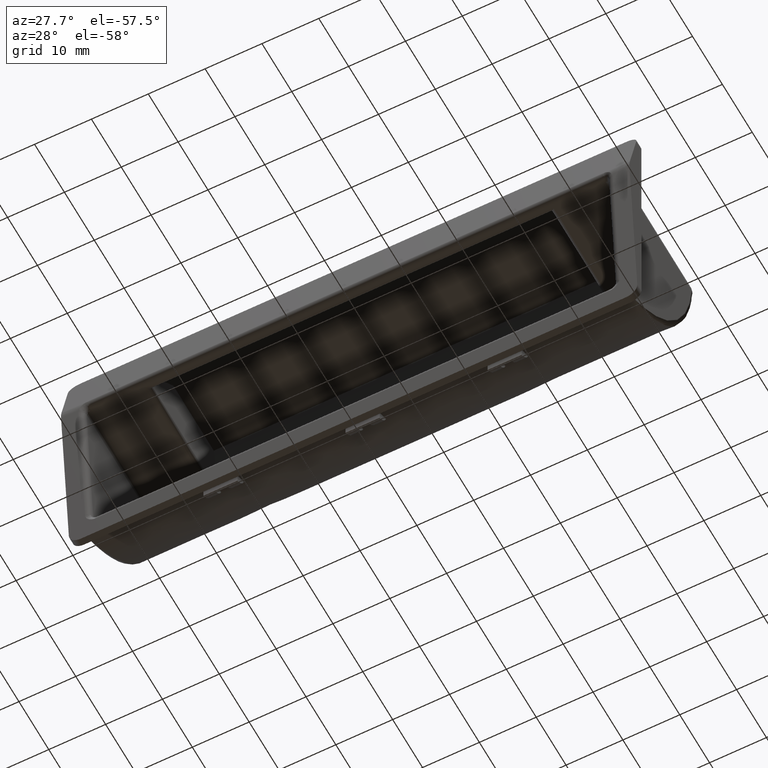
[diagram: clean part render]
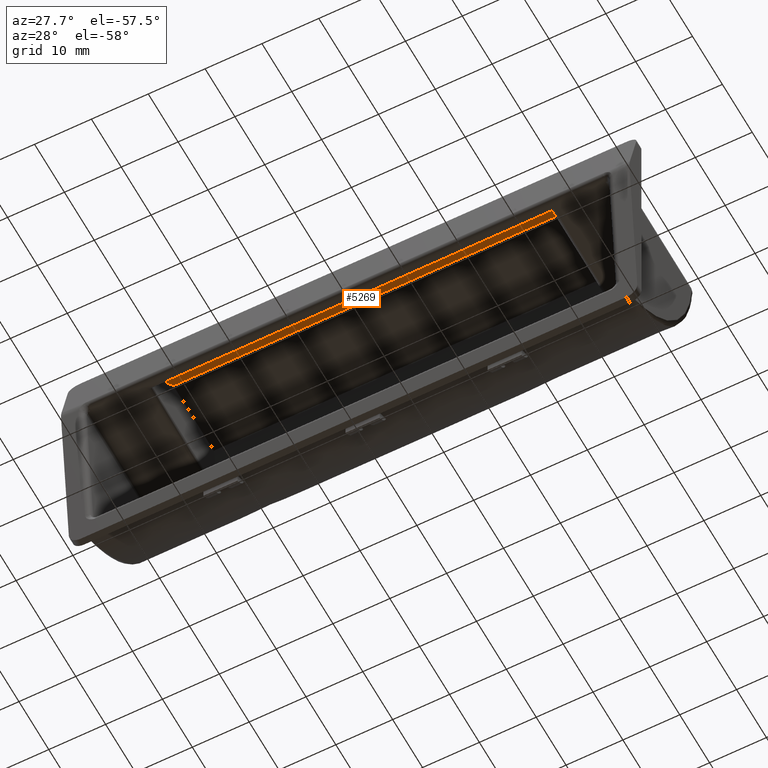
[diagram: same view with one face highlighted and labeled with its STEP entity id]
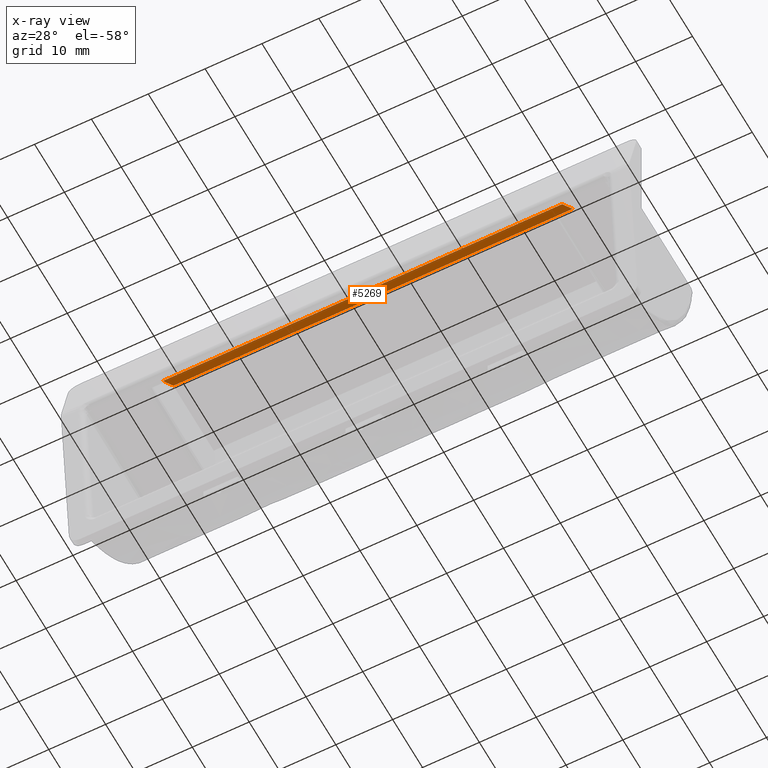
[diagram: x-ray of the same camera — body ghosted, the highlighted face saturated]
A machine part, auxiliary view. The second image highlights one B-rep face of the part: STEP entity #5269.
The next image is the same camera in x-ray: the body ghosted, the highlighted face saturated — about 1% of this face is hidden behind the body in this view.
In plain terms, the highlighted face is a freeform B-spline surface patch.
Its self-contained STEP definition (entity closure, byte-faithful):
#5142=CARTESIAN_POINT('',(35.119999999999997,1.813216283011320,17.250000000000000));
#5143=VERTEX_POINT('',#5142);
#5149=CARTESIAN_POINT('',(35.119999999999997,5.313216283011320,20.750000000000000));
#5150=VERTEX_POINT('',#5149);
#5151=CARTESIAN_POINT('',(35.119999999999997,5.313216283011320,20.750000000000000));
#5152=CARTESIAN_POINT('',(35.119999999999997,1.813216283011320,17.250000000000000));
#5153=QUASI_UNIFORM_CURVE('',1,(#5151,#5152),.UNSPECIFIED.,.F.,.U.);
#5154=EDGE_CURVE('',#5150,#5143,#5153,.T.);
#5169=CARTESIAN_POINT('',(-35.119999999999997,1.813216283011320,17.250000000000000));
#5170=VERTEX_POINT('',#5169);
#5192=CARTESIAN_POINT('',(-35.119999999999997,5.313216283011320,20.750000000000000));
#5193=VERTEX_POINT('',#5192);
#5199=CARTESIAN_POINT('',(-35.119999999999997,5.313216283011320,20.750000000000000));
#5200=CARTESIAN_POINT('',(-35.119999999999997,1.813216283011320,17.250000000000000));
#5201=QUASI_UNIFORM_CURVE('',1,(#5199,#5200),.UNSPECIFIED.,.F.,.U.);
#5202=EDGE_CURVE('',#5193,#5170,#5201,.T.);
#5246=CARTESIAN_POINT('',(-35.119999999999997,1.813216283011320,17.250000000000000));
#5247=CARTESIAN_POINT('',(35.119999999999997,1.813216283011320,17.250000000000000));
#5248=QUASI_UNIFORM_CURVE('',1,(#5246,#5247),.UNSPECIFIED.,.F.,.U.);
#5249=EDGE_CURVE('',#5170,#5143,#5248,.T.);
#5254=CARTESIAN_POINT('',(-38.628486953551757,5.488041243372145,20.924824960360830));
#5255=CARTESIAN_POINT('',(-38.628486953551757,1.638391197480738,17.075174914469422));
#5256=CARTESIAN_POINT('',(38.628484441573612,5.488041243372145,20.924824960360830));
#5257=CARTESIAN_POINT('',(38.628484441573612,1.638391197480738,17.075174914469422));
#5258=B_SPLINE_SURFACE_WITH_KNOTS('',1,1,((#5254,#5256),(#5255,#5257)),.UNSPECIFIED.,.F.,.F.,.U.,(2,2),(2,2),(0.0,5.444227305289834),(0.0,77.256971395125362),.UNSPECIFIED.);
#5259=ORIENTED_EDGE('',*,*,#5154,.T.);
#5260=ORIENTED_EDGE('',*,*,#5249,.F.);
#5261=ORIENTED_EDGE('',*,*,#5202,.F.);
#5262=CARTESIAN_POINT('',(-35.119999999999997,5.313216283011320,20.750000000000000));
#5263=CARTESIAN_POINT('',(35.119999999999997,5.313216283011320,20.750000000000000));
#5264=QUASI_UNIFORM_CURVE('',1,(#5262,#5263),.UNSPECIFIED.,.F.,.U.);
#5265=EDGE_CURVE('',#5193,#5150,#5264,.T.);
#5266=ORIENTED_EDGE('',*,*,#5265,.T.);
#5267=EDGE_LOOP('',(#5259,#5260,#5261,#5266));
#5268=FACE_OUTER_BOUND('',#5267,.T.);
#5269=ADVANCED_FACE('',(#5268),#5258,.F.);